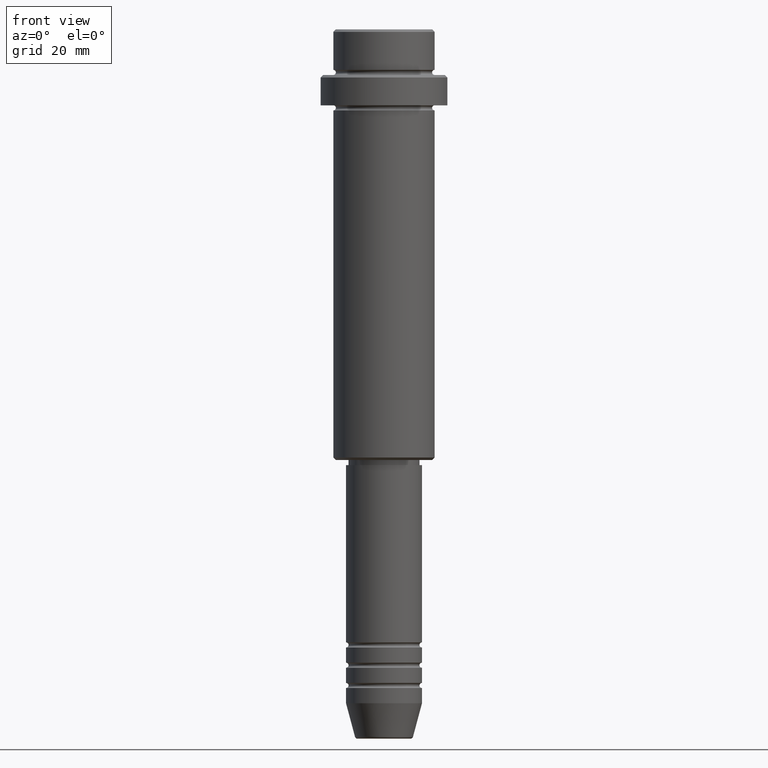
[diagram: clean part render]
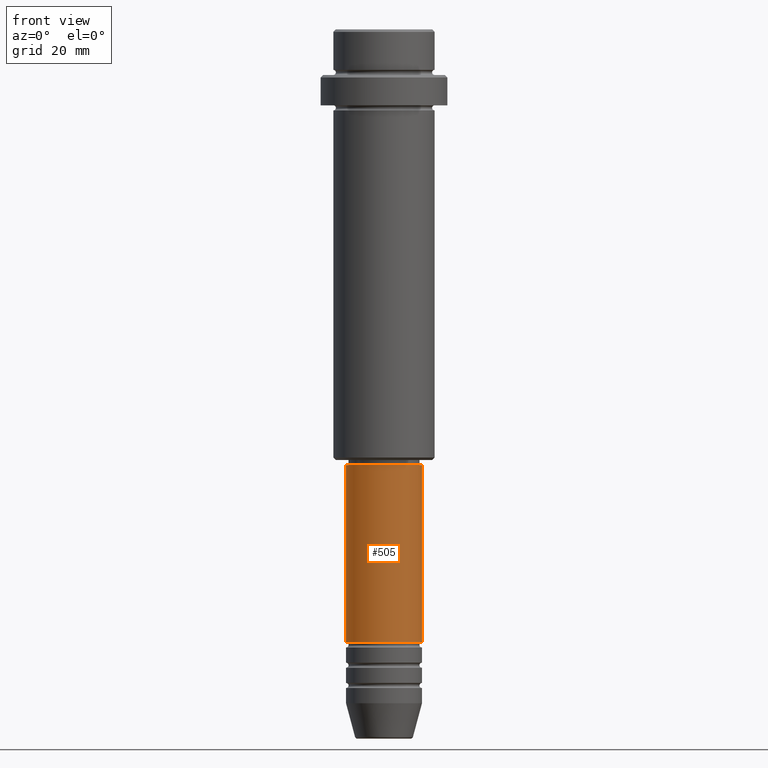
[diagram: same view with one face highlighted and labeled with its STEP entity id]
A machine part, front view. The second image highlights one B-rep face of the part: STEP entity #505.
In plain terms, the highlighted cylindrical surface (partial cylindrical patch) has radius 7.5 mm, axis along (-0, -0, 1).
Its self-contained STEP definition (entity closure, byte-faithful):
#12 = AXIS2_PLACEMENT_3D ( 'NONE', #971, #1206, #655 ) ;
#47 = CARTESIAN_POINT ( 'NONE',  ( 0.000000000000000000, 0.000000000000000000, 0.000000000000000000 ) ) ;
#87 = CARTESIAN_POINT ( 'NONE',  ( 7.500000000000000000, 0.000000000000000000, -120.9999999999999005 ) ) ;
#137 = DIRECTION ( 'NONE',  ( -0.000000000000000000, -0.000000000000000000, 1.000000000000000000 ) ) ;
#190 = AXIS2_PLACEMENT_3D ( 'NONE', #749, #137, #658 ) ;
#199 = ORIENTED_EDGE ( 'NONE', *, *, #288, .T. ) ;
#288 = EDGE_CURVE ( 'NONE', #373, #607, #617, .T. ) ;
#312 = LINE ( 'NONE', #925, #1375 ) ;
#373 = VERTEX_POINT ( 'NONE', #902 ) ;
#376 = DIRECTION ( 'NONE',  ( -0.000000000000000000, -0.000000000000000000, 1.000000000000000000 ) ) ;
#391 = DIRECTION ( 'NONE',  ( -0.000000000000000000, -0.000000000000000000, 1.000000000000000000 ) ) ;
#477 = ORIENTED_EDGE ( 'NONE', *, *, #599, .F. ) ;
#490 = VERTEX_POINT ( 'NONE', #1349 ) ;
#497 = EDGE_LOOP ( 'NONE', ( #477, #199, #1036, #1203 ) ) ;
#505 = ADVANCED_FACE ( 'NONE', ( #1025 ), #1005, .T. ) ;
#507 = DIRECTION ( 'NONE',  ( -0.000000000000000000, -0.000000000000000000, 1.000000000000000000 ) ) ;
#553 = CARTESIAN_POINT ( 'NONE',  ( -7.500000000000000000, 9.184850993605147944E-16, -86.00000000000001421 ) ) ;
#599 = EDGE_CURVE ( 'NONE', #373, #839, #312, .T. ) ;
#607 = VERTEX_POINT ( 'NONE', #87 ) ;
#617 = CIRCLE ( 'NONE', #190, 7.500000000000000000 ) ;
#655 = DIRECTION ( 'NONE',  ( 1.000000000000000000, 0.000000000000000000, 0.000000000000000000 ) ) ;
#658 = DIRECTION ( 'NONE',  ( 1.000000000000000000, 0.000000000000000000, 0.000000000000000000 ) ) ;
#660 = EDGE_CURVE ( 'NONE', #607, #490, #843, .T. ) ;
#664 = AXIS2_PLACEMENT_3D ( 'NONE', #47, #376, #1224 ) ;
#749 = CARTESIAN_POINT ( 'NONE',  ( 0.000000000000000000, 0.000000000000000000, -120.9999999999999005 ) ) ;
#839 = VERTEX_POINT ( 'NONE', #553 ) ;
#843 = LINE ( 'NONE', #1368, #846 ) ;
#846 = VECTOR ( 'NONE', #391, 1000.000000000000000 ) ;
#902 = CARTESIAN_POINT ( 'NONE',  ( -7.500000000000000000, 9.184850993605147944E-16, -120.9999999999999005 ) ) ;
#925 = CARTESIAN_POINT ( 'NONE',  ( -7.500000000000000000, 9.184850993605147944E-16, 0.000000000000000000 ) ) ;
#971 = CARTESIAN_POINT ( 'NONE',  ( 0.000000000000000000, 0.000000000000000000, -86.00000000000001421 ) ) ;
#1005 = CYLINDRICAL_SURFACE ( 'NONE', #664, 7.500000000000000000 ) ;
#1025 = FACE_OUTER_BOUND ( 'NONE', #497, .T. ) ;
#1036 = ORIENTED_EDGE ( 'NONE', *, *, #660, .T. ) ;
#1105 = CIRCLE ( 'NONE', #12, 7.500000000000000000 ) ;
#1203 = ORIENTED_EDGE ( 'NONE', *, *, #1222, .F. ) ;
#1206 = DIRECTION ( 'NONE',  ( -0.000000000000000000, -0.000000000000000000, 1.000000000000000000 ) ) ;
#1222 = EDGE_CURVE ( 'NONE', #839, #490, #1105, .T. ) ;
#1224 = DIRECTION ( 'NONE',  ( 1.000000000000000000, 0.000000000000000000, 0.000000000000000000 ) ) ;
#1349 = CARTESIAN_POINT ( 'NONE',  ( 7.500000000000000000, 0.000000000000000000, -86.00000000000001421 ) ) ;
#1368 = CARTESIAN_POINT ( 'NONE',  ( 7.500000000000000000, 0.000000000000000000, 0.000000000000000000 ) ) ;
#1375 = VECTOR ( 'NONE', #507, 1000.000000000000000 ) ;